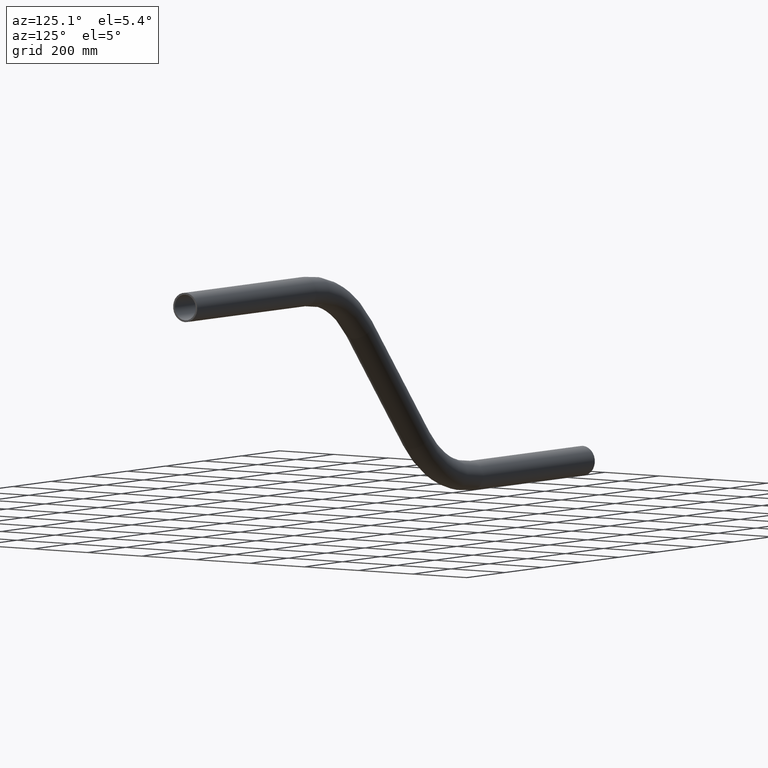
[diagram: clean part render]
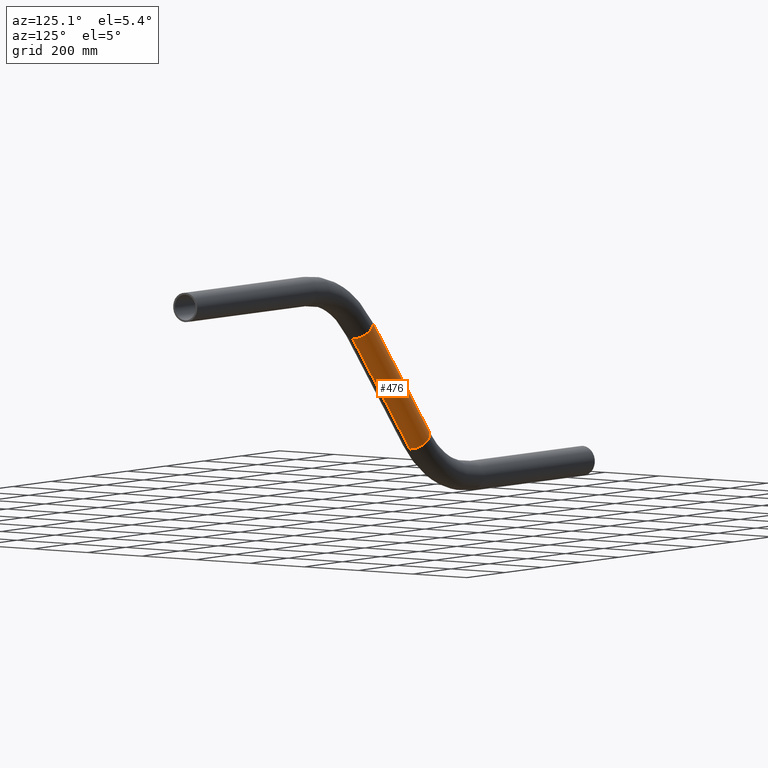
[diagram: same view with one face highlighted and labeled with its STEP entity id]
A machine part, auxiliary view. The second image highlights one B-rep face of the part: STEP entity #476.
In plain terms, the highlighted cylindrical surface (edge-blend (fillet) strip) has radius 44.45 mm, axis along (-0.6428, -0, -0.766).
Its self-contained STEP definition (entity closure, byte-faithful):
#8 = CARTESIAN_POINT ( 'NONE',  ( 1207.687597308056411, 5.443555022209986486E-15, 462.4734443818851446 ) ) ;
#29 = VERTEX_POINT ( 'NONE', #8 ) ;
#44 = VERTEX_POINT ( 'NONE', #611 ) ;
#103 = CARTESIAN_POINT ( 'NONE',  ( 1173.636921811417778, 0.000000000000000000, 491.0453536324516790 ) ) ;
#123 = EDGE_CURVE ( 'NONE', #44, #650, #332, .T. ) ;
#126 = DIRECTION ( 'NONE',  ( 0.6427876096865378086, 0.000000000000000000, 0.7660444431189793457 ) ) ;
#158 = FACE_OUTER_BOUND ( 'NONE', #578, .T. ) ;
#167 = EDGE_CURVE ( 'NONE', #29, #326, #209, .T. ) ;
#181 = CARTESIAN_POINT ( 'NONE',  ( 1139.586246314779146, 0.000000000000000000, 519.6172628830182703 ) ) ;
#209 = CIRCLE ( 'NONE', #584, 44.44999999999994600 ) ;
#230 = CARTESIAN_POINT ( 'NONE',  ( 839.9515655519659276, 0.000000000000000000, 162.5265556181147986 ) ) ;
#237 = ORIENTED_EDGE ( 'NONE', *, *, #167, .F. ) ;
#302 = CARTESIAN_POINT ( 'NONE',  ( 1139.586246314779146, 0.000000000000000000, 519.6172628830182703 ) ) ;
#316 = DIRECTION ( 'NONE',  ( -0.6427876096865378086, -0.000000000000000000, -0.7660444431189793457 ) ) ;
#323 = DIRECTION ( 'NONE',  ( 0.7660444431189794567, 0.000000000000000000, -0.6427876096865375866 ) ) ;
#326 = VERTEX_POINT ( 'NONE', #181 ) ;
#332 = CIRCLE ( 'NONE', #492, 44.45000000000000995 ) ;
#353 = ORIENTED_EDGE ( 'NONE', *, *, #572, .T. ) ;
#402 = DIRECTION ( 'NONE',  ( -0.7660444431189787906, 0.000000000000000000, 0.6427876096865383637 ) ) ;
#406 = CARTESIAN_POINT ( 'NONE',  ( 874.0022410486042190, 0.000000000000000000, 133.9546463675484347 ) ) ;
#413 = DIRECTION ( 'NONE',  ( 0.6427876096865375866, 0.000000000000000000, 0.7660444431189794567 ) ) ;
#425 = AXIS2_PLACEMENT_3D ( 'NONE', #103, #316, #402 ) ;
#431 = EDGE_CURVE ( 'NONE', #326, #650, #647, .T. ) ;
#462 = ORIENTED_EDGE ( 'NONE', *, *, #431, .F. ) ;
#470 = CARTESIAN_POINT ( 'NONE',  ( 1173.636921811417778, 0.000000000000000000, 491.0453536324517927 ) ) ;
#476 = ADVANCED_FACE ( 'NONE', ( #158 ), #562, .T. ) ;
#478 = DIRECTION ( 'NONE',  ( 0.7660444431189782355, 0.000000000000000000, -0.6427876096865391409 ) ) ;
#479 = ORIENTED_EDGE ( 'NONE', *, *, #123, .T. ) ;
#492 = AXIS2_PLACEMENT_3D ( 'NONE', #406, #413, #323 ) ;
#494 = DIRECTION ( 'NONE',  ( -0.6427876096865378086, -0.000000000000000000, -0.7660444431189793457 ) ) ;
#531 = LINE ( 'NONE', #585, #606 ) ;
#562 = CYLINDRICAL_SURFACE ( 'NONE', #425, 44.44999999999991047 ) ;
#572 = EDGE_CURVE ( 'NONE', #29, #44, #531, .T. ) ;
#578 = EDGE_LOOP ( 'NONE', ( #237, #353, #479, #462 ) ) ;
#584 = AXIS2_PLACEMENT_3D ( 'NONE', #470, #126, #478 ) ;
#585 = CARTESIAN_POINT ( 'NONE',  ( 1207.687597308056411, 5.443555022209986486E-15, 462.4734443818850309 ) ) ;
#606 = VECTOR ( 'NONE', #637, 1000.000000000000000 ) ;
#609 = VECTOR ( 'NONE', #494, 1000.000000000000000 ) ;
#611 = CARTESIAN_POINT ( 'NONE',  ( 908.0529165452430789, 5.443555022209986486E-15, 105.3827371169816445 ) ) ;
#637 = DIRECTION ( 'NONE',  ( -0.6427876096865378086, -0.000000000000000000, -0.7660444431189793457 ) ) ;
#647 = LINE ( 'NONE', #302, #609 ) ;
#650 = VERTEX_POINT ( 'NONE', #230 ) ;